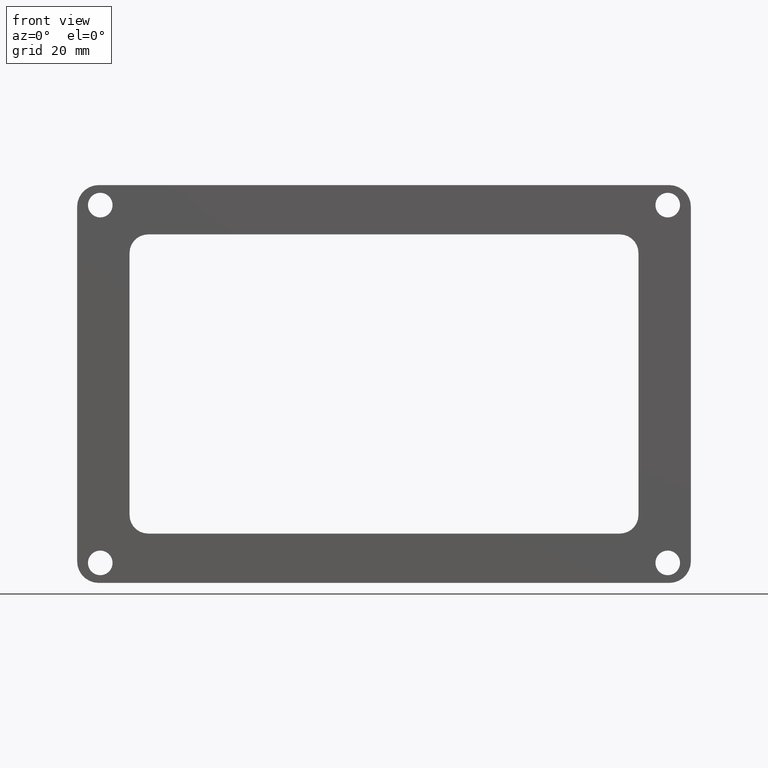
[diagram: clean part render]
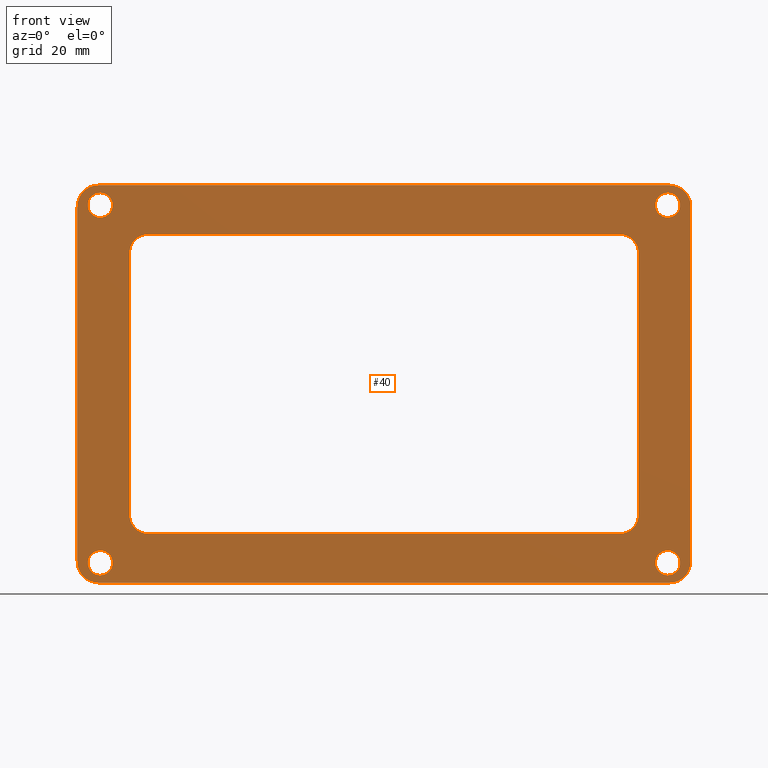
[diagram: same view with one face highlighted and labeled with its STEP entity id]
A machine part, front view. The second image highlights one B-rep face of the part: STEP entity #40.
In plain terms, the highlighted planar face has unit normal (-0, 1, 0).
Its self-contained STEP definition (entity closure, byte-faithful):
#40=ADVANCED_FACE('',(#67,#68,#69,#70,#71,#72),#66,.F.);
#66=PLANE('',#339);
#67=FACE_OUTER_BOUND('',#340,.T.);
#68=FACE_BOUND('',#341,.T.);
#69=FACE_BOUND('',#342,.T.);
#70=FACE_BOUND('',#343,.T.);
#71=FACE_BOUND('',#344,.T.);
#72=FACE_BOUND('',#345,.T.);
#336=CARTESIAN_POINT('',(-1.09500000000E+002,-1.00000000000E+000,-7.45000000000E+001));
#337=DIRECTION('',(-0.00000000000E+000,1.00000000000E+000,0.00000000000E+000));
#338=DIRECTION('',(0.00000000000E+000,0.00000000000E+000,1.00000000000E+000));
#339=AXIS2_PLACEMENT_3D('',#336,#337,#338);
#340=EDGE_LOOP('',(#476,#477,#478,#479,#480,#481,#482,#483));
#341=EDGE_LOOP('',(#484,#485));
#342=EDGE_LOOP('',(#486,#487,#488,#489,#490,#491,#492,#493));
#343=EDGE_LOOP('',(#494,#495));
#344=EDGE_LOOP('',(#496,#497));
#345=EDGE_LOOP('',(#498,#499));
#476=ORIENTED_EDGE('',*,*,#620,.T.);
#477=ORIENTED_EDGE('',*,*,#621,.T.);
#478=ORIENTED_EDGE('',*,*,#622,.T.);
#479=ORIENTED_EDGE('',*,*,#623,.T.);
#480=ORIENTED_EDGE('',*,*,#624,.T.);
#481=ORIENTED_EDGE('',*,*,#625,.T.);
#482=ORIENTED_EDGE('',*,*,#626,.T.);
#483=ORIENTED_EDGE('',*,*,#627,.T.);
#484=ORIENTED_EDGE('',*,*,#628,.F.);
#485=ORIENTED_EDGE('',*,*,#629,.F.);
#486=ORIENTED_EDGE('',*,*,#630,.F.);
#487=ORIENTED_EDGE('',*,*,#631,.F.);
#488=ORIENTED_EDGE('',*,*,#632,.F.);
#489=ORIENTED_EDGE('',*,*,#633,.F.);
#490=ORIENTED_EDGE('',*,*,#634,.F.);
#491=ORIENTED_EDGE('',*,*,#635,.F.);
#492=ORIENTED_EDGE('',*,*,#636,.F.);
#493=ORIENTED_EDGE('',*,*,#637,.F.);
#494=ORIENTED_EDGE('',*,*,#638,.F.);
#495=ORIENTED_EDGE('',*,*,#639,.F.);
#496=ORIENTED_EDGE('',*,*,#640,.F.);
#497=ORIENTED_EDGE('',*,*,#641,.F.);
#498=ORIENTED_EDGE('',*,*,#642,.F.);
#499=ORIENTED_EDGE('',*,*,#643,.F.);
#620=EDGE_CURVE('',#692,#693,#694,.T.);
#621=EDGE_CURVE('',#693,#700,#701,.T.);
#622=EDGE_CURVE('',#700,#707,#708,.T.);
#623=EDGE_CURVE('',#707,#714,#715,.T.);
#624=EDGE_CURVE('',#714,#721,#722,.T.);
#625=EDGE_CURVE('',#721,#728,#729,.T.);
#626=EDGE_CURVE('',#728,#735,#736,.T.);
#627=EDGE_CURVE('',#735,#692,#742,.T.);
#628=EDGE_CURVE('',#748,#749,#750,.T.);
#629=EDGE_CURVE('',#749,#748,#756,.T.);
#630=EDGE_CURVE('',#762,#763,#764,.T.);
#631=EDGE_CURVE('',#770,#762,#771,.T.);
#632=EDGE_CURVE('',#777,#770,#778,.T.);
#633=EDGE_CURVE('',#784,#777,#785,.T.);
#634=EDGE_CURVE('',#791,#784,#792,.T.);
#635=EDGE_CURVE('',#798,#791,#799,.T.);
#636=EDGE_CURVE('',#805,#798,#806,.T.);
#637=EDGE_CURVE('',#763,#805,#812,.T.);
#638=EDGE_CURVE('',#818,#819,#820,.T.);
#639=EDGE_CURVE('',#819,#818,#826,.T.);
#640=EDGE_CURVE('',#832,#833,#834,.T.);
#641=EDGE_CURVE('',#833,#832,#840,.T.);
#642=EDGE_CURVE('',#846,#847,#848,.T.);
#643=EDGE_CURVE('',#847,#846,#854,.T.);
#692=VERTEX_POINT('',#1172);
#693=VERTEX_POINT('',#1173);
#694=CIRCLE('',#1177,7.00000000000E+000);
#700=VERTEX_POINT('',#1178);
#701=LINE('',#1179,#1180);
#707=VERTEX_POINT('',#1182);
#708=CIRCLE('',#1186,7.00000000000E+000);
#714=VERTEX_POINT('',#1187);
#715=LINE('',#1188,#1189);
#721=VERTEX_POINT('',#1191);
#722=CIRCLE('',#1195,7.00000000000E+000);
#728=VERTEX_POINT('',#1196);
#729=LINE('',#1197,#1198);
#735=VERTEX_POINT('',#1200);
#736=CIRCLE('',#1204,7.00000000000E+000);
#742=LINE('',#1205,#1206);
#748=VERTEX_POINT('',#1208);
#749=VERTEX_POINT('',#1209);
#750=CIRCLE('',#1213,4.00000000000E+000);
#756=CIRCLE('',#1217,4.00000000000E+000);
#762=VERTEX_POINT('',#1218);
#763=VERTEX_POINT('',#1219);
#764=CIRCLE('',#1223,6.00000000000E+000);
#770=VERTEX_POINT('',#1224);
#771=LINE('',#1225,#1226);
#777=VERTEX_POINT('',#1228);
#778=CIRCLE('',#1232,6.00000000000E+000);
#784=VERTEX_POINT('',#1233);
#785=LINE('',#1234,#1235);
#791=VERTEX_POINT('',#1237);
#792=CIRCLE('',#1241,6.00000000000E+000);
#798=VERTEX_POINT('',#1242);
#799=LINE('',#1243,#1244);
#805=VERTEX_POINT('',#1246);
#806=CIRCLE('',#1250,6.00000000000E+000);
#812=LINE('',#1251,#1252);
#818=VERTEX_POINT('',#1254);
#819=VERTEX_POINT('',#1255);
#820=CIRCLE('',#1259,4.00000000000E+000);
#826=CIRCLE('',#1263,4.00000000000E+000);
#832=VERTEX_POINT('',#1264);
#833=VERTEX_POINT('',#1265);
#834=CIRCLE('',#1269,4.00000000000E+000);
#840=CIRCLE('',#1273,4.00000000000E+000);
#846=VERTEX_POINT('',#1274);
#847=VERTEX_POINT('',#1275);
#848=CIRCLE('',#1279,4.00000000000E+000);
#854=CIRCLE('',#1283,4.00000000000E+000);
#1172=CARTESIAN_POINT('',(-9.25000000000E+001,-1.00000000000E+000,6.45000000000E+001));
#1173=CARTESIAN_POINT('',(-9.95000000000E+001,-1.00000000000E+000,5.75000000000E+001));
#1174=CARTESIAN_POINT('',(-9.25000000000E+001,-1.00000000000E+000,5.75000000000E+001));
#1175=DIRECTION('',(0.00000000000E+000,-1.00000000000E+000,0.00000000000E+000));
#1176=DIRECTION('',(-0.00000000000E+000,-0.00000000000E+000,-1.00000000000E+000));
#1177=AXIS2_PLACEMENT_3D('',#1174,#1175,#1176);
#1178=CARTESIAN_POINT('',(-9.95000000000E+001,-1.00000000000E+000,-5.75000000000E+001));
#1179=CARTESIAN_POINT('',(-9.95000000000E+001,-1.00000000000E+000,5.75000000000E+001));
#1180=VECTOR('',#1181,1.15000000000E+002);
#1181=DIRECTION('',(0.00000000000E+000,0.00000000000E+000,-1.00000000000E+000));
#1182=CARTESIAN_POINT('',(-9.25000000000E+001,-1.00000000000E+000,-6.45000000000E+001));
#1183=CARTESIAN_POINT('',(-9.25000000000E+001,-1.00000000000E+000,-5.75000000000E+001));
#1184=DIRECTION('',(0.00000000000E+000,-1.00000000000E+000,0.00000000000E+000));
#1185=DIRECTION('',(-0.00000000000E+000,-0.00000000000E+000,-1.00000000000E+000));
#1186=AXIS2_PLACEMENT_3D('',#1183,#1184,#1185);
#1187=CARTESIAN_POINT('',(9.25000000000E+001,-1.00000000000E+000,-6.45000000000E+001));
#1188=CARTESIAN_POINT('',(-9.25000000000E+001,-1.00000000000E+000,-6.45000000000E+001));
#1189=VECTOR('',#1190,1.85000000000E+002);
#1190=DIRECTION('',(1.00000000000E+000,0.00000000000E+000,0.00000000000E+000));
#1191=CARTESIAN_POINT('',(9.95000000000E+001,-1.00000000000E+000,-5.75000000000E+001));
#1192=CARTESIAN_POINT('',(9.25000000000E+001,-1.00000000000E+000,-5.75000000000E+001));
#1193=DIRECTION('',(0.00000000000E+000,-1.00000000000E+000,0.00000000000E+000));
#1194=DIRECTION('',(-0.00000000000E+000,-0.00000000000E+000,-1.00000000000E+000));
#1195=AXIS2_PLACEMENT_3D('',#1192,#1193,#1194);
#1196=CARTESIAN_POINT('',(9.95000000000E+001,-1.00000000000E+000,5.75000000000E+001));
#1197=CARTESIAN_POINT('',(9.95000000000E+001,-1.00000000000E+000,-5.75000000000E+001));
#1198=VECTOR('',#1199,1.15000000000E+002);
#1199=DIRECTION('',(0.00000000000E+000,0.00000000000E+000,1.00000000000E+000));
#1200=CARTESIAN_POINT('',(9.25000000000E+001,-1.00000000000E+000,6.45000000000E+001));
#1201=CARTESIAN_POINT('',(9.25000000000E+001,-1.00000000000E+000,5.75000000000E+001));
#1202=DIRECTION('',(0.00000000000E+000,-1.00000000000E+000,0.00000000000E+000));
#1203=DIRECTION('',(-0.00000000000E+000,-0.00000000000E+000,-1.00000000000E+000));
#1204=AXIS2_PLACEMENT_3D('',#1201,#1202,#1203);
#1205=CARTESIAN_POINT('',(9.25000000000E+001,-1.00000000000E+000,6.45000000000E+001));
#1206=VECTOR('',#1207,1.85000000000E+002);
#1207=DIRECTION('',(-1.00000000000E+000,0.00000000000E+000,0.00000000000E+000));
#1208=CARTESIAN_POINT('',(-9.20000000000E+001,-1.00000000000E+000,-6.20000000000E+001));
#1209=CARTESIAN_POINT('',(-9.20000000000E+001,-1.00000000000E+000,-5.40000000000E+001));
#1210=CARTESIAN_POINT('',(-9.20000000000E+001,-1.00000000000E+000,-5.80000000000E+001));
#1211=DIRECTION('',(0.00000000000E+000,-1.00000000000E+000,0.00000000000E+000));
#1212=DIRECTION('',(-1.22460635382E-016,0.00000000000E+000,1.00000000000E+000));
#1213=AXIS2_PLACEMENT_3D('',#1210,#1211,#1212);
#1214=CARTESIAN_POINT('',(-9.20000000000E+001,-1.00000000000E+000,-5.80000000000E+001));
#1215=DIRECTION('',(0.00000000000E+000,-1.00000000000E+000,0.00000000000E+000));
#1216=DIRECTION('',(-1.22460635382E-016,0.00000000000E+000,1.00000000000E+000));
#1217=AXIS2_PLACEMENT_3D('',#1214,#1215,#1216);
#1218=CARTESIAN_POINT('',(-8.25000000001E+001,-1.00000000000E+000,-4.25000000000E+001));
#1219=CARTESIAN_POINT('',(-7.65000000001E+001,-1.00000000000E+000,-4.85000000000E+001));
#1220=CARTESIAN_POINT('',(-7.65000000001E+001,-1.00000000000E+000,-4.25000000000E+001));
#1221=DIRECTION('',(0.00000000000E+000,-1.00000000000E+000,0.00000000000E+000));
#1222=DIRECTION('',(-0.00000000000E+000,-0.00000000000E+000,-1.00000000000E+000));
#1223=AXIS2_PLACEMENT_3D('',#1220,#1221,#1222);
#1224=CARTESIAN_POINT('',(-8.24999999999E+001,-1.00000000000E+000,4.25000000000E+001));
#1225=CARTESIAN_POINT('',(-8.24999999999E+001,-1.00000000000E+000,4.25000000000E+001));
#1226=VECTOR('',#1227,8.50000000000E+001);
#1227=DIRECTION('',(-2.19716532550E-012,0.00000000000E+000,-1.00000000000E+000));
#1228=CARTESIAN_POINT('',(-7.64999999999E+001,-1.00000000000E+000,4.85000000000E+001));
#1229=CARTESIAN_POINT('',(-7.64999999999E+001,-1.00000000000E+000,4.25000000000E+001));
#1230=DIRECTION('',(0.00000000000E+000,-1.00000000000E+000,0.00000000000E+000));
#1231=DIRECTION('',(-0.00000000000E+000,-0.00000000000E+000,-1.00000000000E+000));
#1232=AXIS2_PLACEMENT_3D('',#1229,#1230,#1231);
#1233=CARTESIAN_POINT('',(7.65000000001E+001,-1.00000000000E+000,4.85000000000E+001));
#1234=CARTESIAN_POINT('',(7.65000000001E+001,-1.00000000000E+000,4.85000000000E+001));
#1235=VECTOR('',#1236,1.53000000000E+002);
#1236=DIRECTION('',(-1.00000000000E+000,0.00000000000E+000,0.00000000000E+000));
#1237=CARTESIAN_POINT('',(8.25000000001E+001,-1.00000000000E+000,4.25000000000E+001));
#1238=CARTESIAN_POINT('',(7.65000000001E+001,-1.00000000000E+000,4.25000000000E+001));
#1239=DIRECTION('',(0.00000000000E+000,-1.00000000000E+000,0.00000000000E+000));
#1240=DIRECTION('',(-0.00000000000E+000,-0.00000000000E+000,-1.00000000000E+000));
#1241=AXIS2_PLACEMENT_3D('',#1238,#1239,#1240);
#1242=CARTESIAN_POINT('',(8.24999999999E+001,-1.00000000000E+000,-4.25000000000E+001));
#1243=CARTESIAN_POINT('',(8.24999999999E+001,-1.00000000000E+000,-4.25000000000E+001));
#1244=VECTOR('',#1245,8.50000000000E+001);
#1245=DIRECTION('',(2.20351841349E-012,0.00000000000E+000,1.00000000000E+000));
#1246=CARTESIAN_POINT('',(7.64999999999E+001,-1.00000000000E+000,-4.85000000000E+001));
#1247=CARTESIAN_POINT('',(7.64999999999E+001,-1.00000000000E+000,-4.25000000000E+001));
#1248=DIRECTION('',(0.00000000000E+000,-1.00000000000E+000,0.00000000000E+000));
#1249=DIRECTION('',(-0.00000000000E+000,-0.00000000000E+000,-1.00000000000E+000));
#1250=AXIS2_PLACEMENT_3D('',#1247,#1248,#1249);
#1251=CARTESIAN_POINT('',(-7.65000000001E+001,-1.00000000000E+000,-4.85000000000E+001));
#1252=VECTOR('',#1253,1.53000000000E+002);
#1253=DIRECTION('',(1.00000000000E+000,0.00000000000E+000,0.00000000000E+000));
#1254=CARTESIAN_POINT('',(9.20000000000E+001,-1.00000000000E+000,-6.20000000000E+001));
#1255=CARTESIAN_POINT('',(9.20000000000E+001,-1.00000000000E+000,-5.40000000000E+001));
#1256=CARTESIAN_POINT('',(9.20000000000E+001,-1.00000000000E+000,-5.80000000000E+001));
#1257=DIRECTION('',(0.00000000000E+000,-1.00000000000E+000,0.00000000000E+000));
#1258=DIRECTION('',(-1.22460635382E-016,0.00000000000E+000,1.00000000000E+000));
#1259=AXIS2_PLACEMENT_3D('',#1256,#1257,#1258);
#1260=CARTESIAN_POINT('',(9.20000000000E+001,-1.00000000000E+000,-5.80000000000E+001));
#1261=DIRECTION('',(0.00000000000E+000,-1.00000000000E+000,0.00000000000E+000));
#1262=DIRECTION('',(-1.22460635382E-016,0.00000000000E+000,1.00000000000E+000));
#1263=AXIS2_PLACEMENT_3D('',#1260,#1261,#1262);
#1264=CARTESIAN_POINT('',(9.20000000000E+001,-1.00000000000E+000,5.40000000000E+001));
#1265=CARTESIAN_POINT('',(9.20000000000E+001,-1.00000000000E+000,6.20000000000E+001));
#1266=CARTESIAN_POINT('',(9.20000000000E+001,-1.00000000000E+000,5.80000000000E+001));
#1267=DIRECTION('',(0.00000000000E+000,-1.00000000000E+000,0.00000000000E+000));
#1268=DIRECTION('',(-1.22460635382E-016,0.00000000000E+000,1.00000000000E+000));
#1269=AXIS2_PLACEMENT_3D('',#1266,#1267,#1268);
#1270=CARTESIAN_POINT('',(9.20000000000E+001,-1.00000000000E+000,5.80000000000E+001));
#1271=DIRECTION('',(0.00000000000E+000,-1.00000000000E+000,0.00000000000E+000));
#1272=DIRECTION('',(-1.22460635382E-016,0.00000000000E+000,1.00000000000E+000));
#1273=AXIS2_PLACEMENT_3D('',#1270,#1271,#1272);
#1274=CARTESIAN_POINT('',(-9.20000000000E+001,-1.00000000000E+000,5.40000000000E+001));
#1275=CARTESIAN_POINT('',(-9.20000000000E+001,-1.00000000000E+000,6.20000000000E+001));
#1276=CARTESIAN_POINT('',(-9.20000000000E+001,-1.00000000000E+000,5.80000000000E+001));
#1277=DIRECTION('',(0.00000000000E+000,-1.00000000000E+000,0.00000000000E+000));
#1278=DIRECTION('',(-1.22460635382E-016,0.00000000000E+000,1.00000000000E+000));
#1279=AXIS2_PLACEMENT_3D('',#1276,#1277,#1278);
#1280=CARTESIAN_POINT('',(-9.20000000000E+001,-1.00000000000E+000,5.80000000000E+001));
#1281=DIRECTION('',(0.00000000000E+000,-1.00000000000E+000,0.00000000000E+000));
#1282=DIRECTION('',(-1.22460635382E-016,0.00000000000E+000,1.00000000000E+000));
#1283=AXIS2_PLACEMENT_3D('',#1280,#1281,#1282);